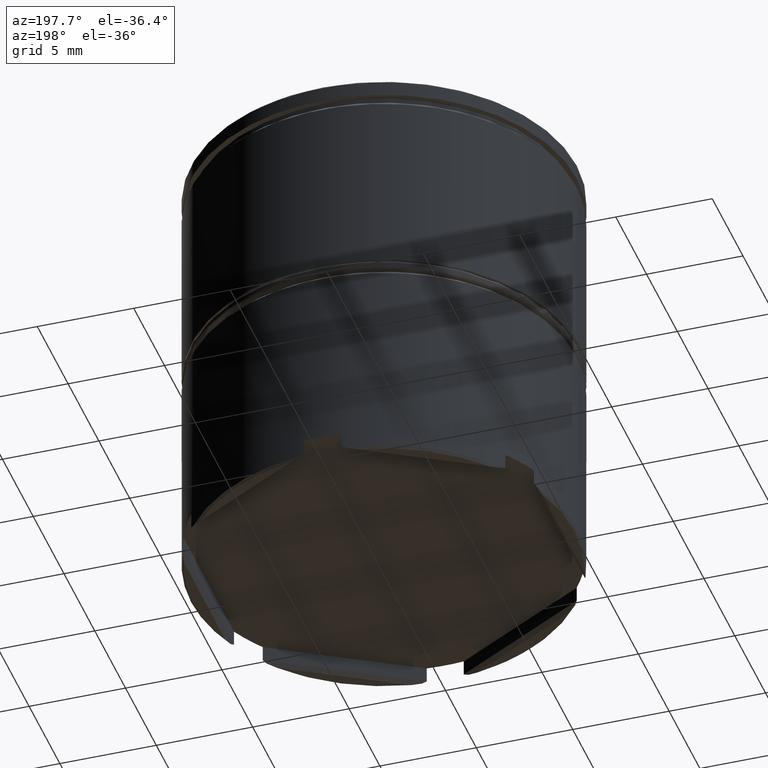
[diagram: clean part render]
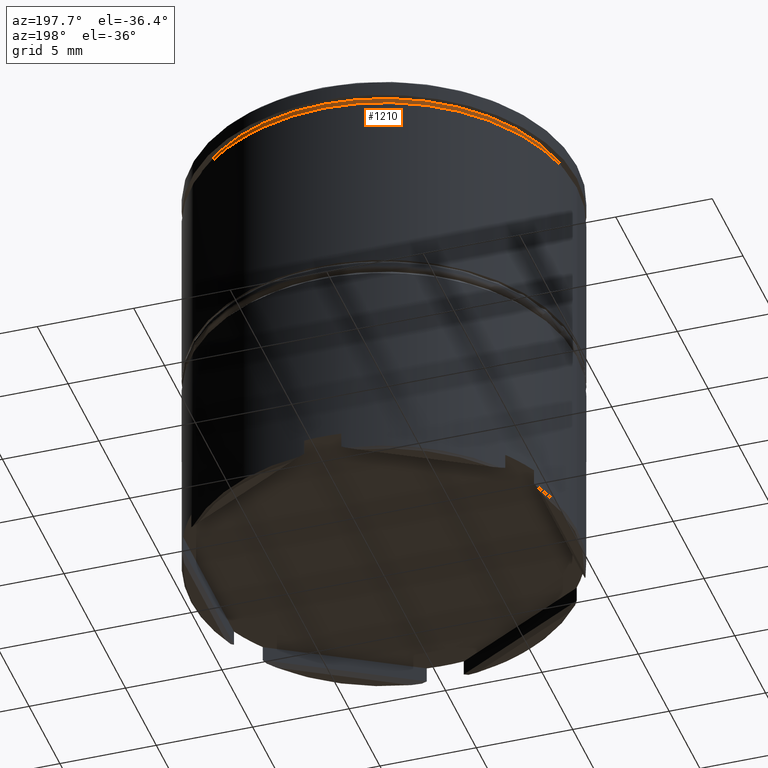
[diagram: same view with one face highlighted and labeled with its STEP entity id]
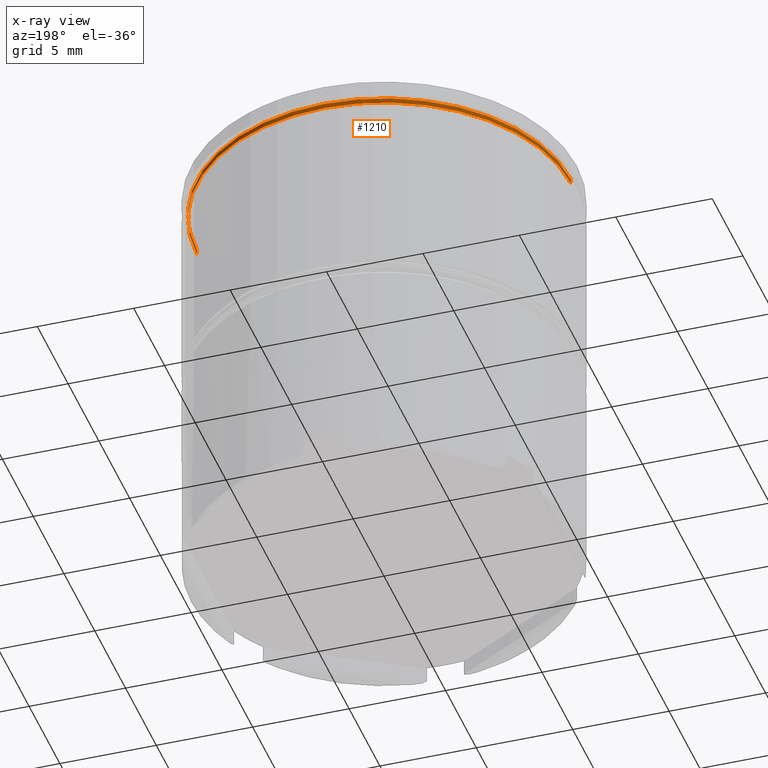
[diagram: x-ray of the same camera — body ghosted, the highlighted face saturated]
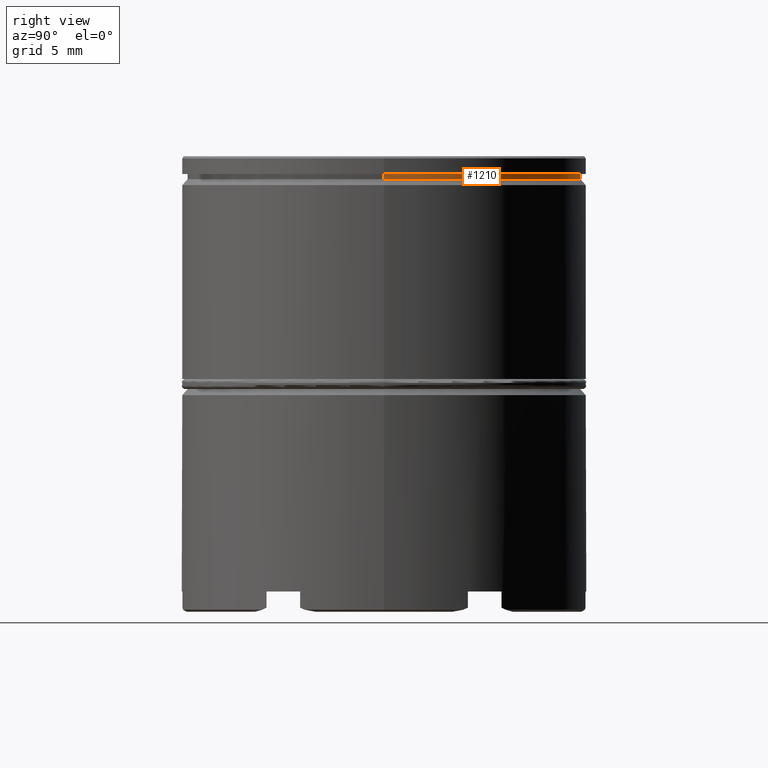
[diagram: same view with one face highlighted and labeled with its STEP entity id]
A machine part, auxiliary view. The second image highlights one B-rep face of the part: STEP entity #1210.
The next image is the same camera in x-ray: the body ghosted, the highlighted face saturated — about 2% of this face is hidden behind the body in this view.
A second angle (right view) of the same face is appended — the face is thin or edge-on in the first view.
In plain terms, the highlighted cylindrical surface (partial cylindrical patch) has radius 9.7 mm, axis along (-0, -0, 1).
Its self-contained STEP definition (entity closure, byte-faithful):
#63 = AXIS2_PLACEMENT_3D ( 'NONE', #799, #408, #389 ) ;
#89 = ORIENTED_EDGE ( 'NONE', *, *, #675, .T. ) ;
#148 = DIRECTION ( 'NONE',  ( -0.000000000000000000, -0.000000000000000000, 1.000000000000000000 ) ) ;
#167 = CARTESIAN_POINT ( 'NONE',  ( -9.700000000000001066, 1.187907395172932594E-15, 0.000000000000000000 ) ) ;
#168 = EDGE_CURVE ( 'NONE', #484, #1598, #1015, .T. ) ;
#320 = DIRECTION ( 'NONE',  ( -0.000000000000000000, -0.000000000000000000, 1.000000000000000000 ) ) ;
#389 = DIRECTION ( 'NONE',  ( 1.000000000000000000, 0.000000000000000000, 0.000000000000000000 ) ) ;
#391 = DIRECTION ( 'NONE',  ( -0.000000000000000000, -0.000000000000000000, 1.000000000000000000 ) ) ;
#408 = DIRECTION ( 'NONE',  ( -0.000000000000000000, -0.000000000000000000, 1.000000000000000000 ) ) ;
#444 = ORIENTED_EDGE ( 'NONE', *, *, #168, .T. ) ;
#484 = VERTEX_POINT ( 'NONE', #862 ) ;
#610 = CARTESIAN_POINT ( 'NONE',  ( 9.700000000000001066, 0.000000000000000000, -0.8749999999999998890 ) ) ;
#668 = FACE_OUTER_BOUND ( 'NONE', #1439, .T. ) ;
#675 = EDGE_CURVE ( 'NONE', #898, #484, #783, .T. ) ;
#755 = EDGE_CURVE ( 'NONE', #959, #1598, #864, .T. ) ;
#783 = CIRCLE ( 'NONE', #1365, 9.700000000000001066 ) ;
#799 = CARTESIAN_POINT ( 'NONE',  ( 0.000000000000000000, 0.000000000000000000, 0.000000000000000000 ) ) ;
#847 = CARTESIAN_POINT ( 'NONE',  ( -9.700000000000001066, 1.187907395172932594E-15, -0.8749999999999998890 ) ) ;
#862 = CARTESIAN_POINT ( 'NONE',  ( -9.700000000000001066, 1.187907395172932594E-15, -1.125000000000000222 ) ) ;
#864 = CIRCLE ( 'NONE', #1423, 9.700000000000001066 ) ;
#898 = VERTEX_POINT ( 'NONE', #939 ) ;
#935 = ORIENTED_EDGE ( 'NONE', *, *, #1492, .F. ) ;
#939 = CARTESIAN_POINT ( 'NONE',  ( 9.700000000000001066, 0.000000000000000000, -1.125000000000000222 ) ) ;
#959 = VERTEX_POINT ( 'NONE', #610 ) ;
#963 = CARTESIAN_POINT ( 'NONE',  ( 0.000000000000000000, 0.000000000000000000, -1.125000000000000222 ) ) ;
#1015 = LINE ( 'NONE', #167, #1237 ) ;
#1034 = CARTESIAN_POINT ( 'NONE',  ( 0.000000000000000000, 0.000000000000000000, -0.8749999999999998890 ) ) ;
#1087 = CARTESIAN_POINT ( 'NONE',  ( 9.700000000000001066, 0.000000000000000000, 0.000000000000000000 ) ) ;
#1210 = ADVANCED_FACE ( 'NONE', ( #668 ), #1264, .T. ) ;
#1218 = VECTOR ( 'NONE', #1610, 1000.000000000000000 ) ;
#1237 = VECTOR ( 'NONE', #148, 1000.000000000000000 ) ;
#1243 = LINE ( 'NONE', #1087, #1218 ) ;
#1264 = CYLINDRICAL_SURFACE ( 'NONE', #63, 9.700000000000001066 ) ;
#1365 = AXIS2_PLACEMENT_3D ( 'NONE', #963, #320, #1477 ) ;
#1403 = DIRECTION ( 'NONE',  ( 1.000000000000000000, 0.000000000000000000, 0.000000000000000000 ) ) ;
#1411 = ORIENTED_EDGE ( 'NONE', *, *, #755, .F. ) ;
#1423 = AXIS2_PLACEMENT_3D ( 'NONE', #1034, #391, #1403 ) ;
#1439 = EDGE_LOOP ( 'NONE', ( #89, #444, #1411, #935 ) ) ;
#1477 = DIRECTION ( 'NONE',  ( 1.000000000000000000, 0.000000000000000000, 0.000000000000000000 ) ) ;
#1492 = EDGE_CURVE ( 'NONE', #898, #959, #1243, .T. ) ;
#1598 = VERTEX_POINT ( 'NONE', #847 ) ;
#1610 = DIRECTION ( 'NONE',  ( -0.000000000000000000, -0.000000000000000000, 1.000000000000000000 ) ) ;